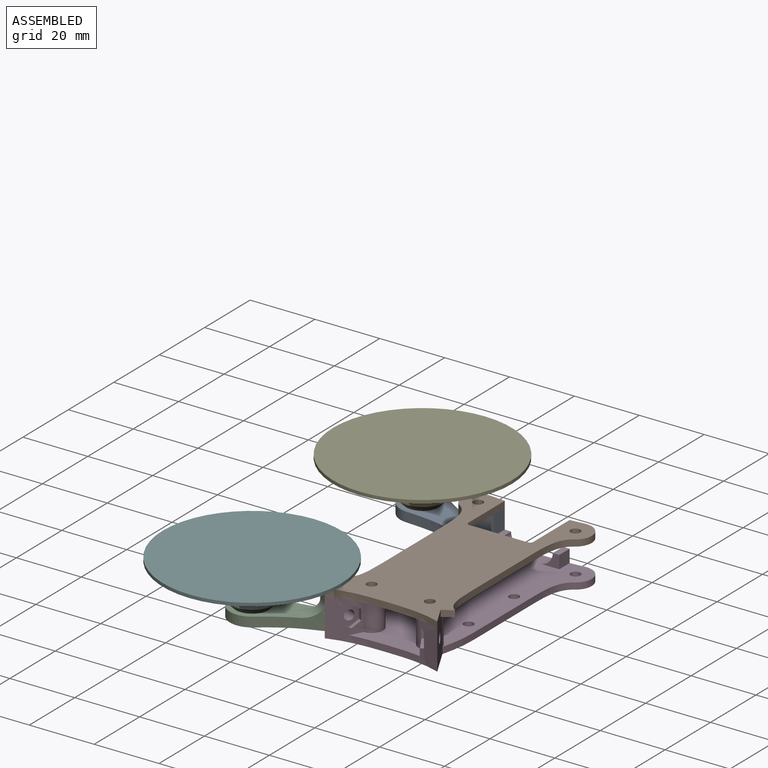
[diagram: assembled view]
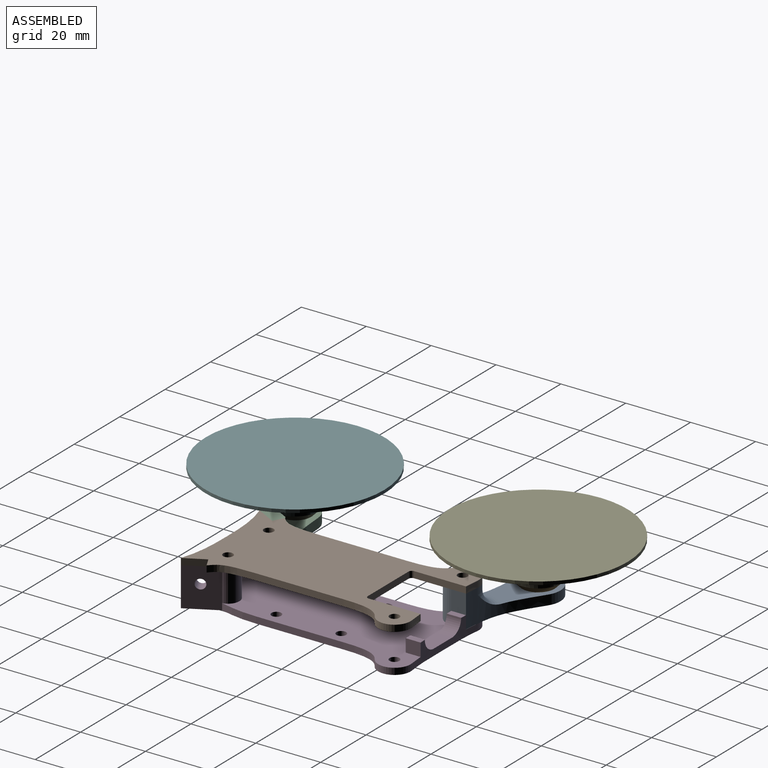
[diagram: assembled view, second angle]
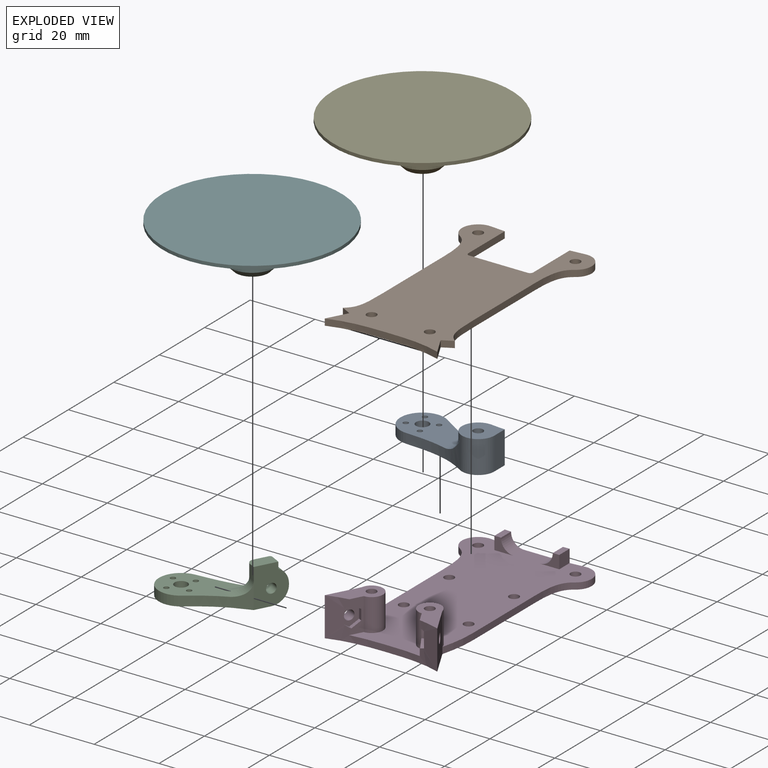
[diagram: exploded view]
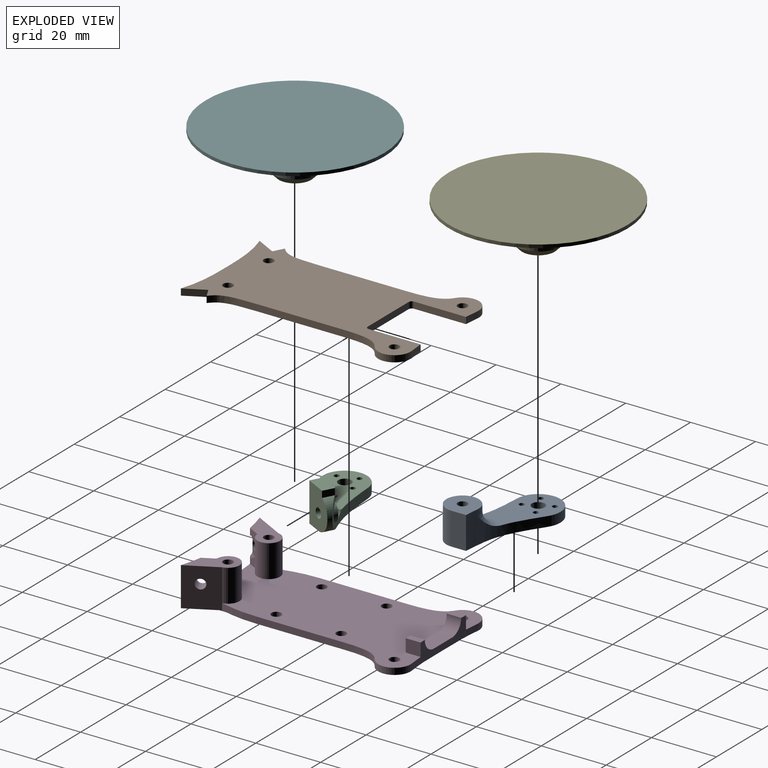
[diagram: exploded view, second angle]
ASSEMBLY  parts=6 mates=5
PART A: 16 faces, bbox 34.4x27.1x11.6 mm
  f0: cylinder r=5mm len=10mm, axis (0,0,-1), area 133.2mm2, adj f1,f8,f12,f13,f14,f15
  f1: extruded ~10x4.59mm, area 46.1mm2, adj f0,f2,f12,f13,f15
  f2: extruded ~19.13x8.27mm, area 77.3mm2, adj f1,f3,f11,f12,f14
  f3: cylinder r=6.8mm len=13.59mm, axis (0,0,-1), area 75.2mm2, adj f2,f8,f11,f12
  f4: cylinder r=0.8mm len=3mm, axis (0,0,-1), area 15.1mm2, adj f11,f12
  f5: cylinder r=0.8mm len=3mm, axis (0,0,-1), area 15.1mm2, adj f11,f12
  f6: cylinder r=0.8mm len=3mm, axis (0,0,-1), area 15.1mm2, adj f11,f12
  f7: cylinder r=0.8mm len=3mm, axis (0,0,-1), area 15.1mm2, adj f11,f12
  f8: extruded ~20.15x8mm, area 77.1mm2, adj f0,f3,f11,f12,f14
  f9: cylinder r=1.5mm len=10mm, axis (0,0,-1), area 94.2mm2, adj f12,f13
  f10: cylinder r=2mm len=4mm, axis (0,0,-1), area 37.7mm2, adj f11,f12
  f11: plane 22.09x15.45mm, normal (0,0,1), area 200.7mm2, adj f2,f3,f4,f5,f6,f7,f8,f10
  f12: plane 34.35x19.4mm, normal (0,0,-1), area 321mm2, adj f0,f1,f2,f3,f4,f5,f6,f7
  f13: plane 10.05x10mm, normal (0,0,1), area 75.7mm2, adj f0,f1,f9,f15
  f14: torus R=10mm, axis (0,0,1), area 75.5mm2, adj f0,f2,f8,f11
  f15: plane 10x4.55mm, normal (1,0,0), area 45.5mm2, adj f0,f1,f12,f13
PART B: 29 faces, bbox 40x69.2x2 mm
  f0: plane 69.21x40mm, normal (0,0,1), area 1659.8mm2, adj f2,f3,f4,f5,f6,f7,f8,f9
  f1: plane 69.21x40mm, normal (0,0,-1), area 1659.8mm2, adj f2,f3,f4,f5,f6,f7,f8,f9
  f2: extruded ~2x0mm, area 0mm2, adj f0,f1,f3,f10
  f3: extruded ~12.94x3.26mm, area 27.7mm2, adj f0,f1,f2,f4
  f4: plane 3.19x2mm, normal (-0.47,-0.88,0), area 7.2mm2, adj f0,f1,f3,f5
  f5: plane 6.18x3.28mm, normal (-0.88,0.47,0), area 14mm2, adj f0,f1,f4,f6
  f6: extruded ~17.35x2.12mm, area 35.1mm2, adj f0,f1,f5,f20
  f7: extruded ~4.59x2mm, area 9.2mm2, adj f0,f1,f8,f12
  f8: cylinder r=5mm len=9.24mm, axis (0,0,-1), area 26.6mm2, adj f0,f1,f7,f9
  f9: extruded ~12.16x3.66mm, area 26.5mm2, adj f0,f1,f8,f10
  f10: plane 27x2mm, normal (-1,0,0), area 54mm2, adj f0,f1,f2,f9
  f11: cylinder r=1.5mm len=3mm, axis (0,0,-1), area 18.8mm2, adj f0,f1
  f12: plane 16x2mm, normal (1,0,0), area 32mm2, adj f0,f1,f7,f13
  f13: cylinder r=1mm len=2mm, axis (0,0,1), area 3.1mm2, adj f0,f1,f12,f14
  f14: plane 18x2mm, normal (0,1,0), area 36mm2, adj f0,f1,f13,f27
  f15: cylinder r=1.5mm len=3mm, axis (0,0,1), area 18.8mm2, adj f0,f1
  f16: extruded ~2x0mm, area 0mm2, adj f0,f1,f17,f24
  f17: extruded ~12.94x3.26mm, area 27.7mm2, adj f0,f1,f16,f18
  f18: plane 3.19x2mm, normal (0.47,-0.88,0), area 7.2mm2, adj f0,f1,f17,f19
  f19: plane 6.18x3.28mm, normal (0.88,0.47,0), area 14mm2, adj f0,f1,f18,f20
  f20: extruded ~17.35x2.12mm, area 35.1mm2, adj f0,f1,f6,f19
  f21: extruded ~4.59x2mm, area 9.2mm2, adj f0,f1,f22,f26
  f22: cylinder r=5mm len=9.24mm, axis (0,0,-1), area 26.6mm2, adj f0,f1,f21,f23
  f23: extruded ~12.16x3.66mm, area 26.5mm2, adj f0,f1,f22,f24
  f24: plane 27x2mm, normal (1,0,0), area 54mm2, adj f0,f1,f16,f23
  f25: cylinder r=1.5mm len=3mm, axis (0,0,-1), area 18.8mm2, adj f0,f1
  f26: plane 16x2mm, normal (-1,0,0), area 32mm2, adj f0,f1,f21,f27
  f27: cylinder r=1mm len=2mm, axis (0,0,1), area 3.1mm2, adj f0,f1,f14,f26
  f28: cylinder r=1.5mm len=3mm, axis (0,0,1), area 18.8mm2, adj f0,f1
PART C: 27 faces, bbox 31.6x21.3x12 mm
  f0: cylinder r=5mm len=0.22mm, axis (-0.47,-0.88,0), area 0mm2, adj f2,f14,f23
  f1: plane 21.09x15.39mm, normal (0,0,1), area 185.4mm2, adj f2,f3,f4,f6,f7,f8,f9,f11
  f2: extruded ~24.05x12mm, area 81.1mm2, adj f0,f1,f3,f10,f12,f14,f15,f17
  f3: cylinder r=6.8mm len=13.58mm, axis (0,0,-1), area 75.7mm2, adj f1,f2,f4,f12
  f4: extruded ~16.08x8.63mm, area 62.2mm2, adj f1,f3,f5,f12,f16
  f5: plane 12x8.83mm, normal (0.88,-0.47,0), area 97.7mm2, adj f4,f10,f12,f13,f17,f18,f19,f20
  f6: cylinder r=0.8mm len=3mm, axis (0,0,-1), area 15.1mm2, adj f1,f12
  f7: cylinder r=0.8mm len=3mm, axis (0,0,-1), area 15.1mm2, adj f1,f12
  f8: cylinder r=0.8mm len=3mm, axis (0,0,-1), area 15.1mm2, adj f1,f12
  f9: cylinder r=0.8mm len=3mm, axis (0,0,-1), area 15.1mm2, adj f1,f12
  f10: plane 1.28x0.68mm, normal (0.47,0.88,0), area 0.6mm2, adj f2,f5,f19,f20
  f11: cylinder r=2mm len=4mm, axis (0,0,-1), area 37.7mm2, adj f1,f12
  f12: plane 29.3x17.09mm, normal (0,0,-1), area 257.1mm2, adj f2,f3,f4,f5,f6,f7,f8,f9
  f13: plane 4x1.77mm, normal (-0.47,-0.88,0), area 8mm2, adj f5,f16,f17,f21
  f14: plane 10.25x5.74mm, normal (-0.88,0.47,0), area 43.7mm2, adj f0,f2,f15,f17,f21,f23,f24,f25
  f15: cylinder r=5mm len=10.07mm, axis (-0.47,-0.88,0), area 20.5mm2, adj f1,f2,f14,f22,f24
  f16: cylinder r=5mm len=10.29mm, axis (0.88,-0.47,0), area 23.3mm2, adj f1,f4,f13,f22
  f17: plane 7.87x6.11mm, normal (0,0,1), area 27mm2, adj f2,f5,f13,f14,f18,f21
  f18: plane 3.19x2mm, normal (0.47,0.88,0), area 7.2mm2, adj f2,f5,f17,f19
  f19: cylinder r=5mm len=4.6mm, axis (-0.88,0.47,0), area 12.7mm2, adj f2,f5,f10,f18
  f20: cylinder r=5mm len=6.98mm, axis (-0.88,0.47,0), area 21.7mm2, adj f2,f5,f10,f12
  f21: cylinder r=2mm len=4mm, axis (0,0,-1), area 12.6mm2, adj f13,f14,f17,f22
  f22: bspline ~8.53x5.65mm, area 17.9mm2, adj f15,f16,f21
  f23: cylinder r=3.25mm len=0.22mm, axis (0.88,-0.47,0), area 0mm2, adj f0,f2,f14
  f24: cylinder r=3.25mm len=6.25mm, axis (0.88,-0.47,0), area 14.1mm2, adj f2,f14,f15
  f25: cylinder r=3.25mm len=5.77mm, axis (0.88,-0.47,0), area 6.2mm2, adj f2,f14
  f26: cylinder r=1.5mm len=4.94mm, axis (0.88,-0.47,0), area 37.7mm2, adj f5,f14
PART D: 52 faces, bbox 40x69.2x12 mm
  f0: plane 67.8x40mm, normal (0,0,1), area 1752.2mm2, adj f2,f3,f4,f5,f6,f7,f9,f10
  f1: cylinder r=1.5mm len=4.76mm, axis (0.88,-0.47,0), area 35.8mm2, adj f8,f17
  f2: extruded ~17.35x12mm, area 94mm2, adj f0,f3,f8,f13,f14,f17,f18,f19
  f3: plane 10x3.63mm, normal (0.88,-0.47,0), area 23.9mm2, adj f0,f2,f14,f15,f18,f19,f20,f21
  f4: cylinder r=5mm len=9.24mm, axis (0,0,-1), area 26.6mm2, adj f0,f5,f10,f13
  f5: extruded ~12.16x3.66mm, area 26.5mm2, adj f0,f4,f6,f13
  f6: plane 27x2mm, normal (-1,0,0), area 54mm2, adj f0,f5,f7,f13
  f7: extruded ~11.54x2mm, area 23.4mm2, adj f0,f6,f8,f13
  f8: plane 12x9.27mm, normal (-0.88,0.47,0), area 118.9mm2, adj f1,f2,f7,f13,f14,f15
  f9: cylinder r=1.5mm len=3mm, axis (0,0,-1), area 18.8mm2, adj f0,f13
  f10: extruded ~14.59x6mm, area 40.7mm2, adj f0,f4,f13,f23,f25,f26,f36
  f11: cylinder r=1.5mm len=3mm, axis (0,0,-1), area 18.8mm2, adj f0,f13
  f12: cylinder r=1.5mm len=3mm, axis (0,0,-1), area 18.8mm2, adj f0,f13
  f13: plane 69.21x40mm, normal (0,0,-1), area 1930.9mm2, adj f2,f4,f5,f6,f7,f8,f9,f10
  f14: plane 12.19x11.88mm, normal (0,0,1), area 62.6mm2, adj f2,f3,f8,f15,f16
  f15: cylinder r=3.5mm len=10mm, axis (0,0,-1), area 158.6mm2, adj f0,f3,f8,f14
  f16: cylinder r=1.5mm len=12mm, axis (0,0,-1), area 113.1mm2, adj f13,f14
  f17: plane 6.47x3.8mm, normal (0.88,-0.47,0), area 14.9mm2, adj f1,f2,f18,f19,f20,f21,f22
  f18: plane 1.77x1.33mm, normal (0.23,0.44,0.87), area 1.4mm2, adj f2,f3,f17,f20
  f19: plane 1.77x1.33mm, normal (0.23,0.44,-0.87), area 1.4mm2, adj f2,f3,f17,f21
  f20: plane 3.04x2.37mm, normal (-0.23,-0.44,0.87), area 3.9mm2, adj f3,f17,f18,f22
  f21: plane 3.04x2.37mm, normal (-0.23,-0.44,-0.87), area 3.9mm2, adj f3,f17,f19,f22
  f22: plane 3.23x1.06mm, normal (-0.47,-0.88,0), area 3.9mm2, adj f3,f17,f20,f21
  f23: plane 4.55x4mm, normal (-1,0,0), area 18.2mm2, adj f0,f10,f24,f25
  f24: plane 6x4mm, normal (0,-1,0), area 11.4mm2, adj f0,f23,f25,f26
  f25: plane 4.56x2.01mm, normal (0,0,1), area 9mm2, adj f10,f23,f24,f26
  f26: cylinder r=4mm len=4.47mm, axis (0,1,0), area 28mm2, adj f0,f10,f24,f25
  f27: cylinder r=1.5mm len=4.76mm, axis (-0.88,-0.47,0), area 35.8mm2, adj f34,f42
  f28: extruded ~17.35x12mm, area 94mm2, adj f0,f2,f13,f29,f34,f39,f42,f43
  f29: plane 10x3.63mm, normal (-0.88,-0.47,0), area 23.9mm2, adj f0,f28,f39,f40,f43,f44,f45,f46
  f30: cylinder r=5mm len=9.24mm, axis (0,0,-1), area 26.6mm2, adj f0,f13,f31,f36
  f31: extruded ~12.16x3.66mm, area 26.5mm2, adj f0,f13,f30,f32
  f32: plane 27x2mm, normal (1,0,0), area 54mm2, adj f0,f13,f31,f33
  f33: extruded ~11.54x2mm, area 23.4mm2, adj f0,f13,f32,f34
  f34: plane 12x9.27mm, normal (0.88,0.47,0), area 118.9mm2, adj f13,f27,f28,f33,f39,f40
  f35: cylinder r=1.5mm len=3mm, axis (0,0,-1), area 18.8mm2, adj f0,f13
  f36: extruded ~14.59x6mm, area 40.7mm2, adj f0,f10,f13,f30,f48,f50,f51
  f37: cylinder r=1.5mm len=3mm, axis (0,0,-1), area 18.8mm2, adj f0,f13
  f38: cylinder r=1.5mm len=3mm, axis (0,0,-1), area 18.8mm2, adj f0,f13
  f39: plane 12.19x11.88mm, normal (0,0,1), area 62.6mm2, adj f28,f29,f34,f40,f41
  f40: cylinder r=3.5mm len=10mm, axis (0,0,-1), area 158.6mm2, adj f0,f29,f34,f39
  f41: cylinder r=1.5mm len=12mm, axis (0,0,-1), area 113.1mm2, adj f13,f39
  f42: plane 6.47x3.8mm, normal (-0.88,-0.47,0), area 14.9mm2, adj f27,f28,f43,f44,f45,f46,f47
  f43: plane 1.77x1.33mm, normal (-0.23,0.44,0.87), area 1.4mm2, adj f28,f29,f42,f45
  f44: plane 1.77x1.33mm, normal (-0.23,0.44,-0.87), area 1.4mm2, adj f28,f29,f42,f46
  f45: plane 3.04x2.37mm, normal (0.23,-0.44,0.87), area 3.9mm2, adj f29,f42,f43,f47
  f46: plane 3.04x2.37mm, normal (0.23,-0.44,-0.87), area 3.9mm2, adj f29,f42,f44,f47
  f47: plane 3.23x1.06mm, normal (0.47,-0.88,0), area 3.9mm2, adj f29,f42,f45,f46
  f48: plane 4.55x4mm, normal (1,0,0), area 18.2mm2, adj f0,f36,f49,f50
  f49: plane 6x4mm, normal (0,-1,0), area 11.4mm2, adj f0,f48,f50,f51
  f50: plane 4.56x2.01mm, normal (0,0,1), area 9mm2, adj f36,f48,f49,f51
  f51: cylinder r=4mm len=4.47mm, axis (0,1,0), area 28mm2, adj f0,f36,f49,f50
PART E: 7 faces, bbox 55x55x13.5 mm
  f0: cylinder r=7mm len=14mm, axis (0,0,-1), area 373.8mm2, adj f2,f3
  f1: plane 10x10mm, normal (0,0,-1), area 78.5mm2, adj f2
  f2: cone r=7mm half-angle=45deg, axis (0,0,1), area 106.6mm2, adj f0,f1
  f3: cone r=5mm half-angle=45deg, axis (0,0,-1), area 106.6mm2, adj f0,f6
  f4: cylinder r=27.5mm len=55mm, axis (0,0,-1), area 172.8mm2, adj f5,f6
  f5: plane 55x55mm, normal (0,0,1), area 2375.8mm2, adj f4
  f6: plane 55x55mm, normal (0,0,-1), area 2297.3mm2, adj f3,f4
PART F: same geometry as E
PLACE A t=(-8.4,-4.53,-15.42)mm
PLACE B t=(-8.4,-4.53,-15.42)mm
PLACE C rot(axis=(-0.14,0.99,0.03),0deg) t=(-8.4,-4.53,-15.42)mm
PLACE D t=(-8.4,-4.53,-15.42)mm
PLACE E t=(-8.4,-4.53,-15.42)mm
PLACE F rot(axis=(-0.14,0.99,0.03),0deg) t=(-8.4,-79.53,-15.42)mm
MATE revolute C.f20 <-> D.f1  axis (0.88,-0.47,0) through (-23.4,-34.42,-8.42)mm
MATE fastened B.f1 <-> D.f14  axis (0,0,1) through (-25.74,-38.84,-3.42)mm
MATE revolute A.f0 <-> D.f4  axis (0,0,-1) through (-23.4,25.37,-13.42)mm
MATE fastened E.f0 <-> A.f3  axis (0,0,-1) through (-45.9,32.97,-10.42)mm
MATE fastened F.f0 <-> C.f3  axis (0,0,-1) through (-45.9,-42.03,-10.42)mm
